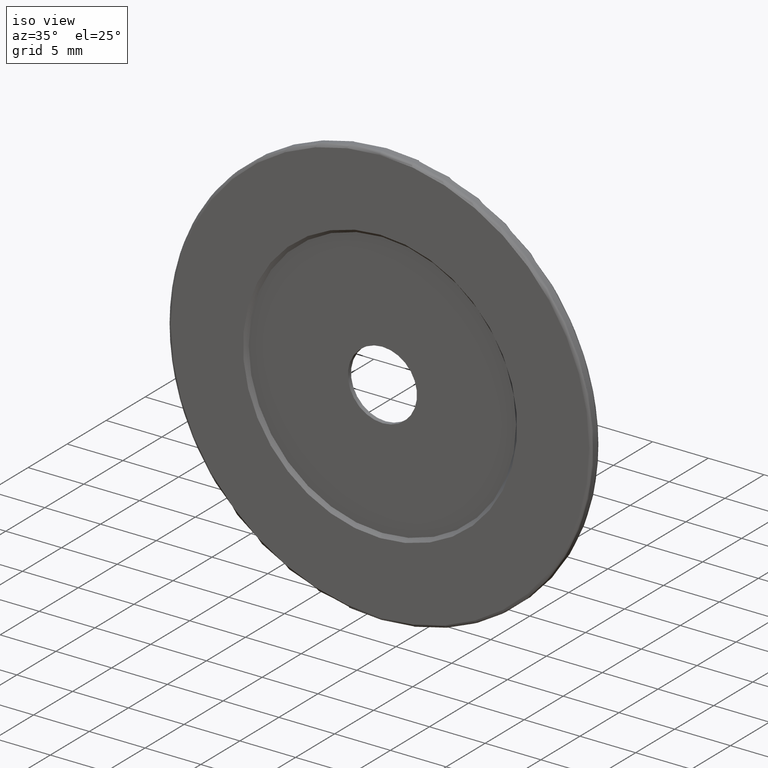
[diagram: clean part render]
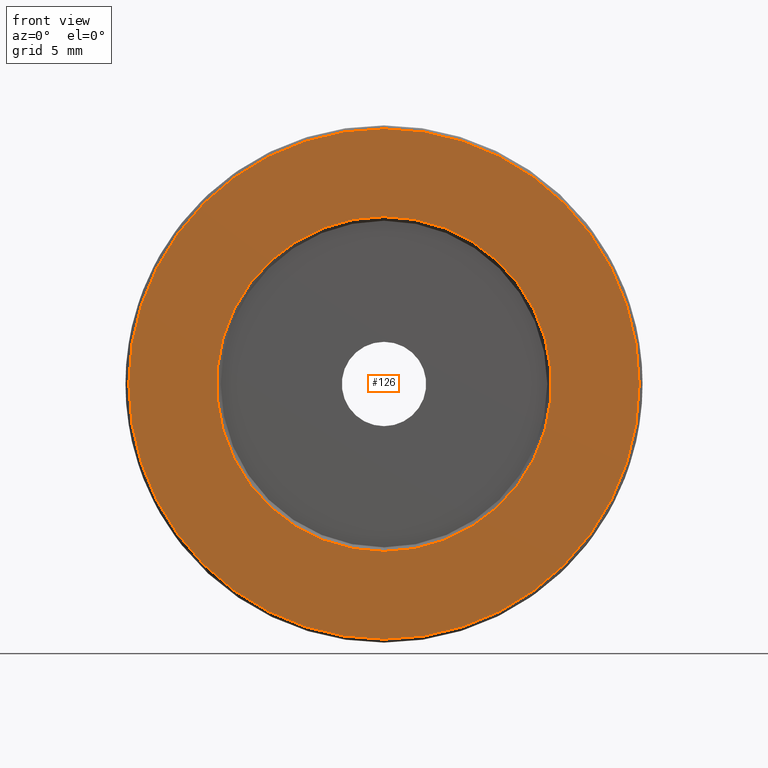
[diagram: tour spotlight — one face highlighted and labeled with its STEP entity id]
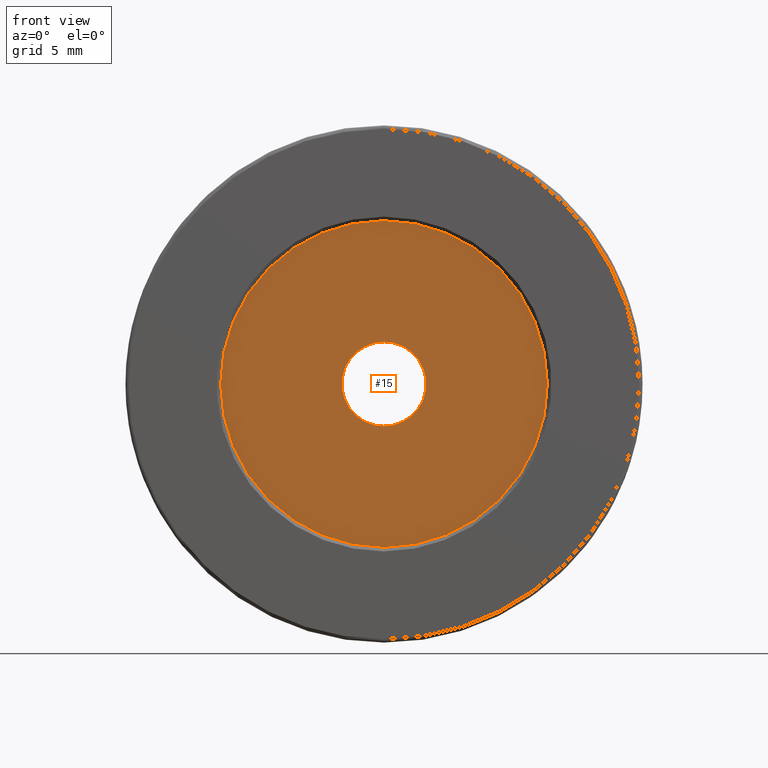
[diagram: tour spotlight — one face highlighted and labeled with its STEP entity id]
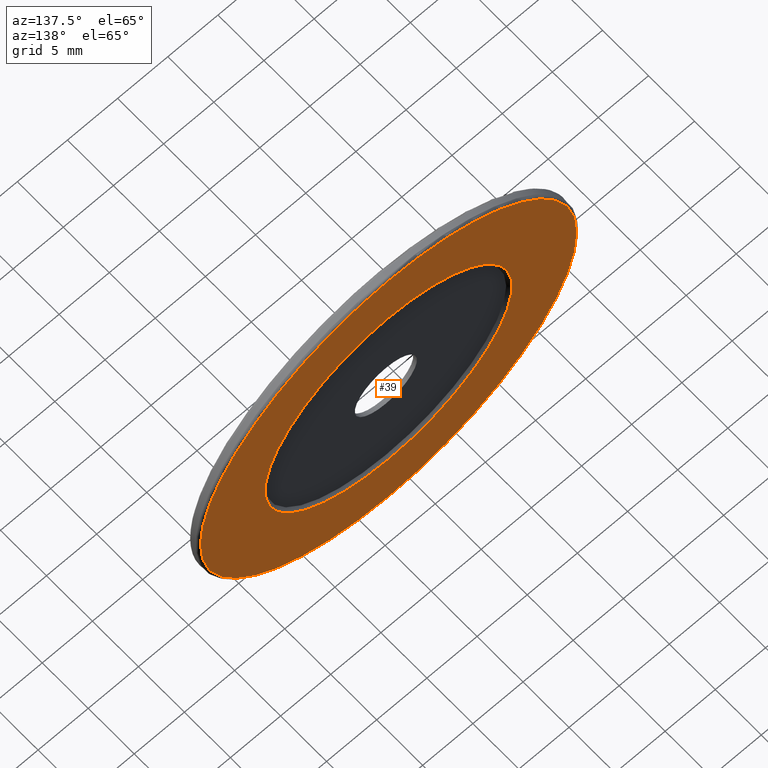
[diagram: tour spotlight — one face highlighted and labeled with its STEP entity id]
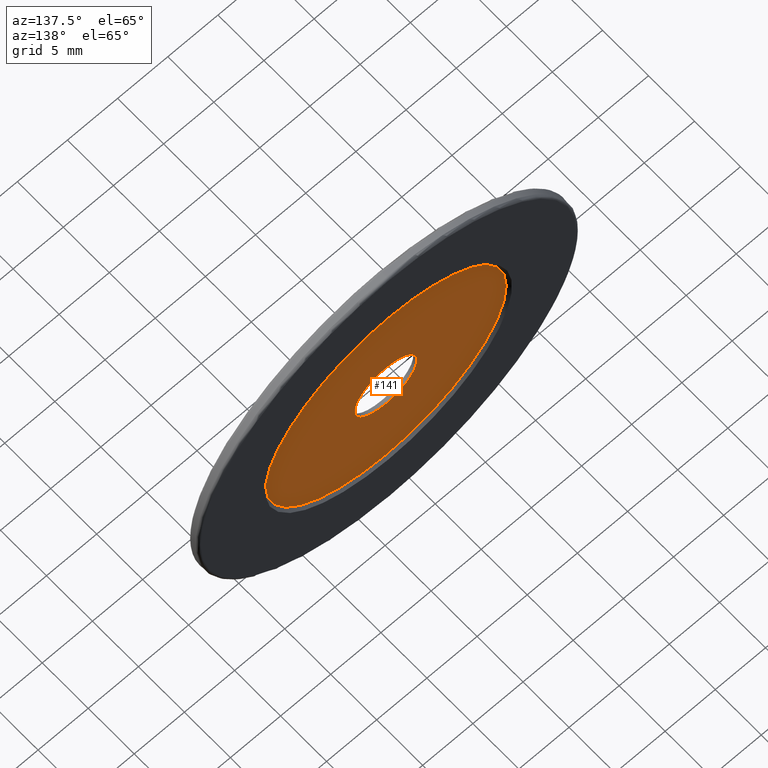
[diagram: tour spotlight — one face highlighted and labeled with its STEP entity id]
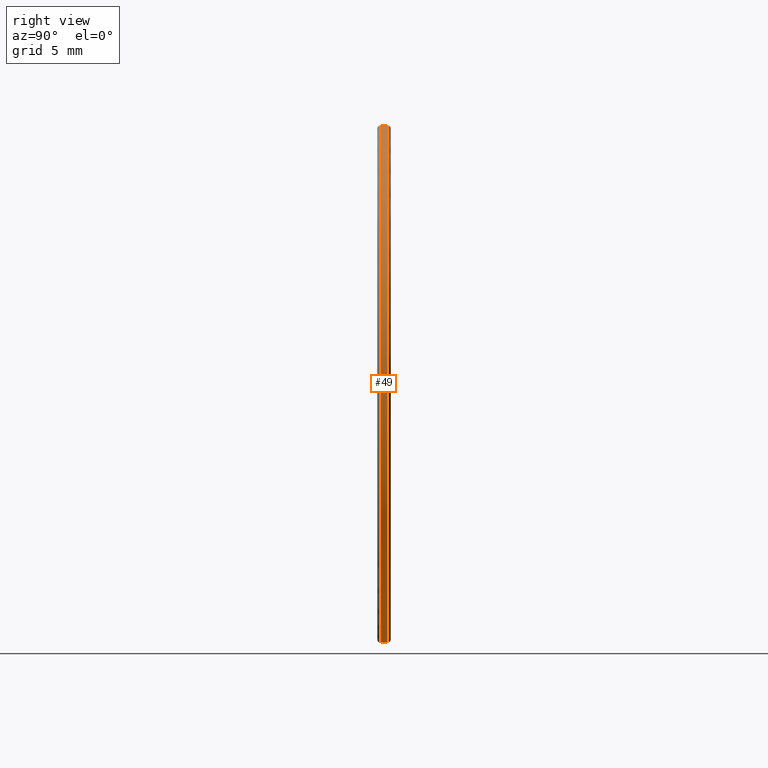
[diagram: tour spotlight — one face highlighted and labeled with its STEP entity id]
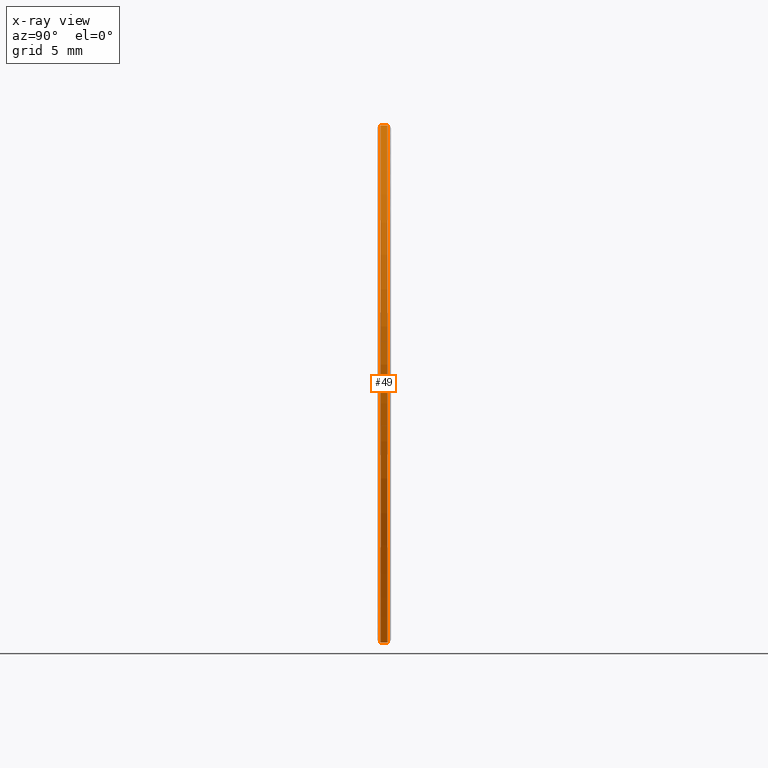
[diagram: x-ray of the same camera — body ghosted, this tour face saturated]
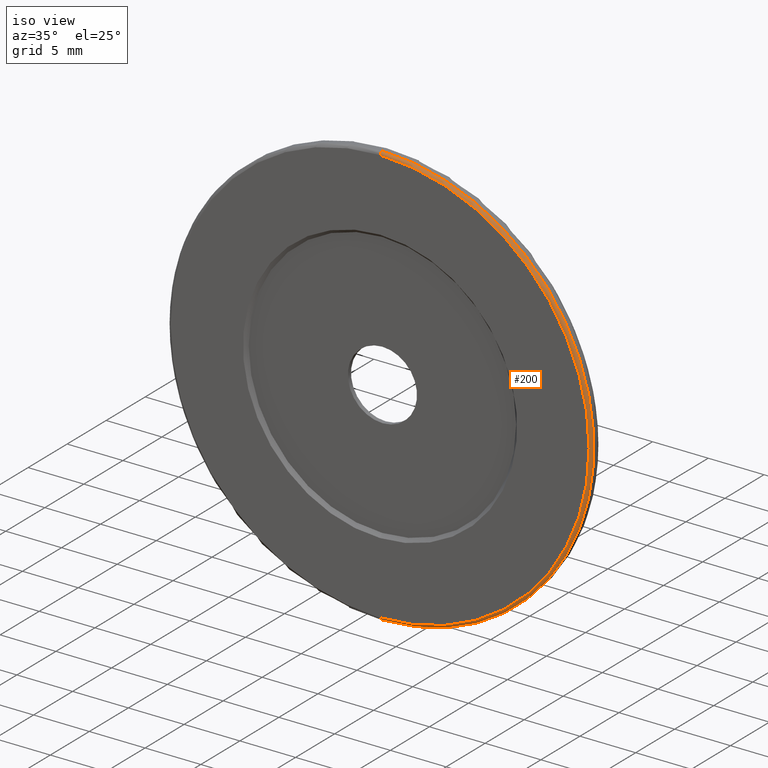
[diagram: tour spotlight — one face highlighted and labeled with its STEP entity id]
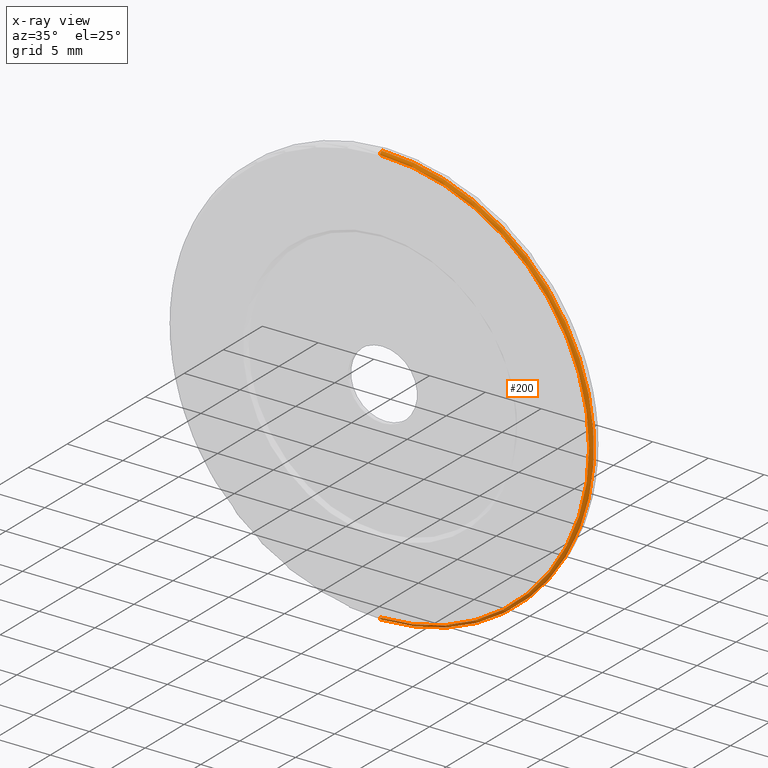
[diagram: x-ray of the same camera — body ghosted, this tour face saturated]
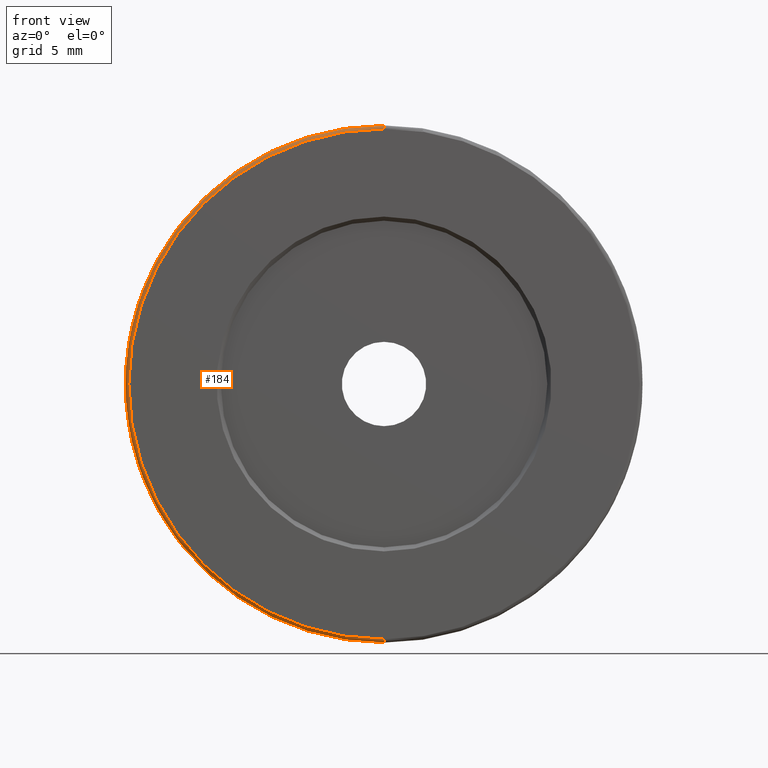
[diagram: tour spotlight — one face highlighted and labeled with its STEP entity id]
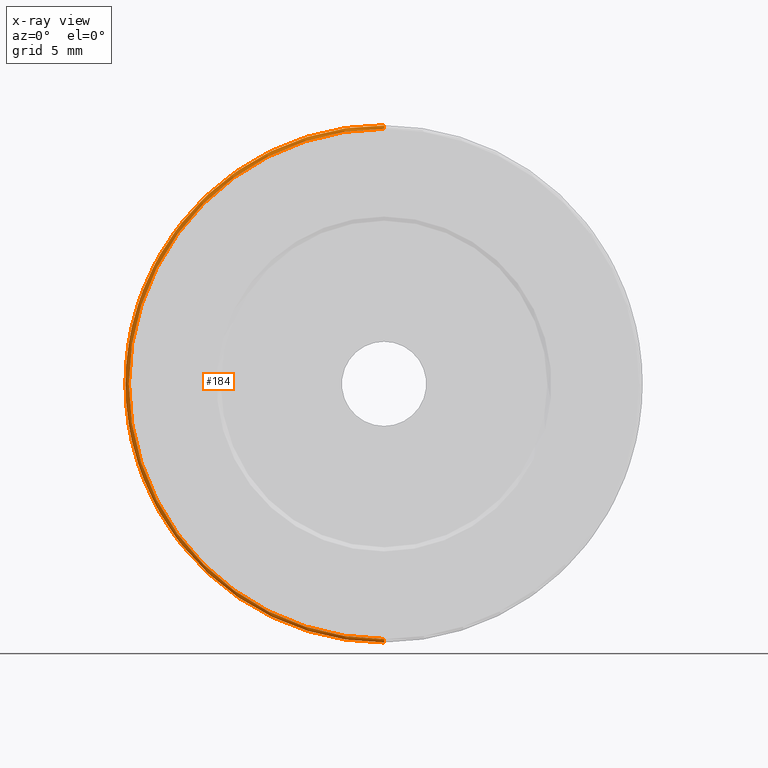
[diagram: x-ray of the same camera — body ghosted, this tour face saturated]
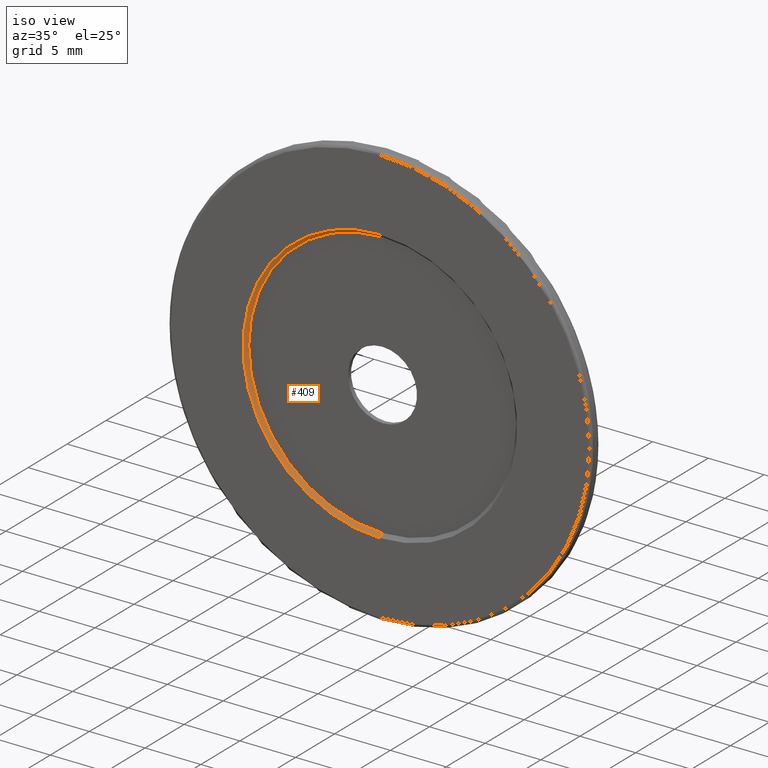
[diagram: tour spotlight — one face highlighted and labeled with its STEP entity id]
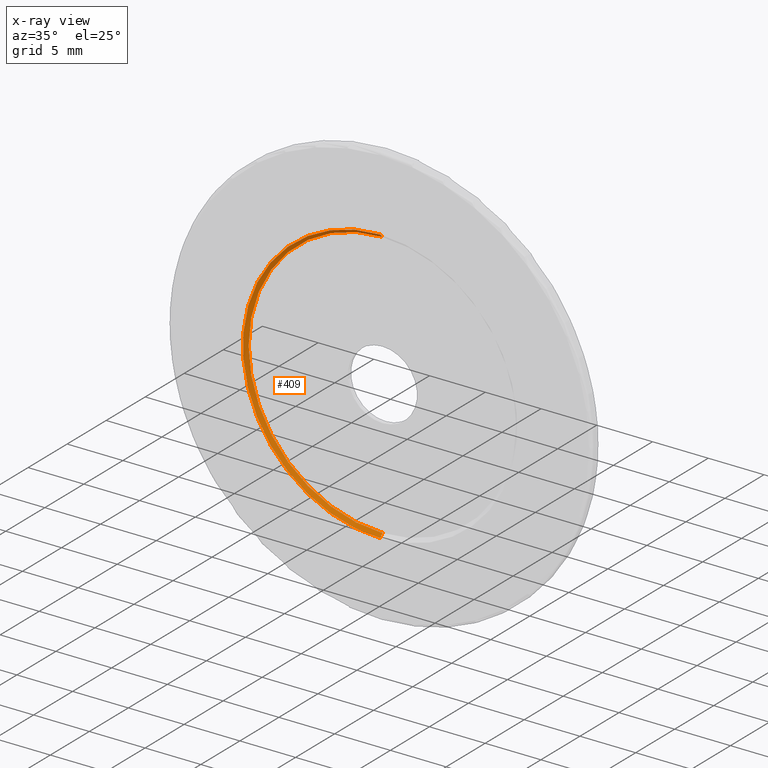
[diagram: x-ray of the same camera — body ghosted, this tour face saturated]
A machine part: a face-by-face anatomy tour. The part has 16 B-rep faces; the first image is the clean iso view, then the 8 largest visible faces are spotlighted one at a time (largest first), each with its STEP entity span.

Face 1 — front view, entity #126. In plain terms, the highlighted planar face has unit normal (0, 1, 0).
Definition (entity closure, byte-faithful):
#6 = DIRECTION ( 'NONE',  ( 0.000000000000000000, 0.000000000000000000, 1.000000000000000000 ) ) ;
#9 = FACE_BOUND ( 'NONE', #230, .T. ) ;
#14 = DIRECTION ( 'NONE',  ( 0.000000000000000000, 1.000000000000000000, 0.000000000000000000 ) ) ;
#26 = EDGE_CURVE ( 'NONE', #472, #430, #405, .T. ) ;
#31 = DIRECTION ( 'NONE',  ( 0.000000000000000000, 0.000000000000000000, 1.000000000000000000 ) ) ;
#37 = CARTESIAN_POINT ( 'NONE',  ( -7.546808913101048510, -3.393595127302727832, 38.00000000000000000 ) ) ;
#38 = ORIENTED_EDGE ( 'NONE', *, *, #26, .T. ) ;
#53 = EDGE_CURVE ( 'NONE', #74, #420, #452, .T. ) ;
#74 = VERTEX_POINT ( 'NONE', #127 ) ;
#79 = DIRECTION ( 'NONE',  ( 0.000000000000000000, 0.000000000000000000, 1.000000000000000000 ) ) ;
#82 = EDGE_LOOP ( 'NONE', ( #264, #38 ) ) ;
#88 = CARTESIAN_POINT ( 'NONE',  ( -7.546808913101048510, -3.393595127302727832, 38.00000000000000000 ) ) ;
#126 = ADVANCED_FACE ( 'NONE', ( #364, #9 ), #168, .F. ) ;
#127 = CARTESIAN_POINT ( 'NONE',  ( -7.546808913101046734, -3.393595127302727832, 50.29999999999999716 ) ) ;
#132 = CARTESIAN_POINT ( 'NONE',  ( -7.546808913101048510, -3.393595127302727832, 38.00000000000000000 ) ) ;
#168 = PLANE ( 'NONE',  #233 ) ;
#180 = AXIS2_PLACEMENT_3D ( 'NONE', #450, #325, #487 ) ;
#190 = CARTESIAN_POINT ( 'NONE',  ( -7.546808913101045846, -3.393595127302727832, 19.25000000000000000 ) ) ;
#205 = CIRCLE ( 'NONE', #489, 18.74999999999999645 ) ;
#221 = DIRECTION ( 'NONE',  ( 0.000000000000000000, 1.000000000000000000, 0.000000000000000000 ) ) ;
#230 = EDGE_LOOP ( 'NONE', ( #258, #292 ) ) ;
#233 = AXIS2_PLACEMENT_3D ( 'NONE', #132, #485, #244 ) ;
#244 = DIRECTION ( 'NONE',  ( 0.000000000000000000, -0.000000000000000000, 1.000000000000000000 ) ) ;
#258 = ORIENTED_EDGE ( 'NONE', *, *, #313, .T. ) ;
#262 = DIRECTION ( 'NONE',  ( -0.000000000000000000, -1.000000000000000000, -0.000000000000000000 ) ) ;
#264 = ORIENTED_EDGE ( 'NONE', *, *, #453, .T. ) ;
#282 = AXIS2_PLACEMENT_3D ( 'NONE', #37, #221, #79 ) ;
#292 = ORIENTED_EDGE ( 'NONE', *, *, #53, .T. ) ;
#313 = EDGE_CURVE ( 'NONE', #420, #74, #414, .T. ) ;
#314 = CARTESIAN_POINT ( 'NONE',  ( -7.546808913101048510, -3.393595127302727832, 38.00000000000000000 ) ) ;
#325 = DIRECTION ( 'NONE',  ( -0.000000000000000000, -1.000000000000000000, -0.000000000000000000 ) ) ;
#364 = FACE_OUTER_BOUND ( 'NONE', #82, .T. ) ;
#391 = CARTESIAN_POINT ( 'NONE',  ( -7.546808913101048510, -3.393595127302727832, 25.69999999999999929 ) ) ;
#405 = CIRCLE ( 'NONE', #180, 18.74999999999999645 ) ;
#414 = CIRCLE ( 'NONE', #282, 12.29999999999999893 ) ;
#420 = VERTEX_POINT ( 'NONE', #391 ) ;
#430 = VERTEX_POINT ( 'NONE', #474 ) ;
#450 = CARTESIAN_POINT ( 'NONE',  ( -7.546808913101048510, -3.393595127302727832, 38.00000000000000000 ) ) ;
#452 = CIRCLE ( 'NONE', #470, 12.29999999999999893 ) ;
#453 = EDGE_CURVE ( 'NONE', #430, #472, #205, .T. ) ;
#470 = AXIS2_PLACEMENT_3D ( 'NONE', #88, #14, #6 ) ;
#472 = VERTEX_POINT ( 'NONE', #190 ) ;
#474 = CARTESIAN_POINT ( 'NONE',  ( -7.546808913101048510, -3.393595127302727832, 56.74999999999999289 ) ) ;
#485 = DIRECTION ( 'NONE',  ( 0.000000000000000000, 1.000000000000000000, 0.000000000000000000 ) ) ;
#487 = DIRECTION ( 'NONE',  ( 0.000000000000000000, 0.000000000000000000, 1.000000000000000000 ) ) ;
#489 = AXIS2_PLACEMENT_3D ( 'NONE', #314, #262, #31 ) ;

Face 2 — front view, entity #15. In plain terms, the highlighted planar face has unit normal (0, -1, 0).
Definition (entity closure, byte-faithful):
#5 = AXIS2_PLACEMENT_3D ( 'NONE', #384, #288, #250 ) ;
#15 = ADVANCED_FACE ( 'NONE', ( #404, #358 ), #411, .T. ) ;
#29 = DIRECTION ( 'NONE',  ( -0.000000000000000000, 1.000000000000000000, -0.000000000000000000 ) ) ;
#40 = CIRCLE ( 'NONE', #90, 3.099999999999998757 ) ;
#46 = DIRECTION ( 'NONE',  ( 0.000000000000000000, -1.000000000000000000, 0.000000000000000000 ) ) ;
#72 = ORIENTED_EDGE ( 'NONE', *, *, #179, .T. ) ;
#81 = DIRECTION ( 'NONE',  ( 0.000000000000000000, 0.000000000000000000, -1.000000000000000000 ) ) ;
#89 = CARTESIAN_POINT ( 'NONE',  ( -7.546808913101048510, -3.093595127302728010, 25.99999999999999645 ) ) ;
#90 = AXIS2_PLACEMENT_3D ( 'NONE', #335, #99, #297 ) ;
#93 = CARTESIAN_POINT ( 'NONE',  ( -7.546808913101046734, -3.093595127302728010, 50.00000000000000000 ) ) ;
#97 = DIRECTION ( 'NONE',  ( -0.000000000000000000, 1.000000000000000000, -0.000000000000000000 ) ) ;
#99 = DIRECTION ( 'NONE',  ( -0.000000000000000000, 1.000000000000000000, -0.000000000000000000 ) ) ;
#112 = VERTEX_POINT ( 'NONE', #247 ) ;
#138 = AXIS2_PLACEMENT_3D ( 'NONE', #463, #97, #212 ) ;
#140 = VERTEX_POINT ( 'NONE', #93 ) ;
#154 = CARTESIAN_POINT ( 'NONE',  ( -7.546808913101048510, -3.093595127302728010, 38.00000000000000000 ) ) ;
#179 = EDGE_CURVE ( 'NONE', #210, #112, #40, .T. ) ;
#186 = EDGE_CURVE ( 'NONE', #140, #503, #224, .T. ) ;
#201 = ORIENTED_EDGE ( 'NONE', *, *, #248, .F. ) ;
#202 = DIRECTION ( 'NONE',  ( 0.000000000000000000, 0.000000000000000000, 1.000000000000000000 ) ) ;
#210 = VERTEX_POINT ( 'NONE', #451 ) ;
#212 = DIRECTION ( 'NONE',  ( 0.000000000000000000, 0.000000000000000000, 1.000000000000000000 ) ) ;
#224 = CIRCLE ( 'NONE', #5, 12.00000000000000355 ) ;
#238 = CARTESIAN_POINT ( 'NONE',  ( -7.546808913101048510, -3.093595127302728010, 38.00000000000000000 ) ) ;
#247 = CARTESIAN_POINT ( 'NONE',  ( -7.546808913101048510, -3.093595127302728010, 34.89999999999999858 ) ) ;
#248 = EDGE_CURVE ( 'NONE', #503, #140, #296, .T. ) ;
#250 = DIRECTION ( 'NONE',  ( 0.000000000000000000, 0.000000000000000000, 1.000000000000000000 ) ) ;
#288 = DIRECTION ( 'NONE',  ( -0.000000000000000000, 1.000000000000000000, -0.000000000000000000 ) ) ;
#291 = AXIS2_PLACEMENT_3D ( 'NONE', #154, #29, #81 ) ;
#295 = EDGE_LOOP ( 'NONE', ( #72, #315 ) ) ;
#296 = CIRCLE ( 'NONE', #138, 12.00000000000000355 ) ;
#297 = DIRECTION ( 'NONE',  ( 0.000000000000000000, 0.000000000000000000, -1.000000000000000000 ) ) ;
#304 = ORIENTED_EDGE ( 'NONE', *, *, #186, .F. ) ;
#307 = AXIS2_PLACEMENT_3D ( 'NONE', #238, #46, #202 ) ;
#315 = ORIENTED_EDGE ( 'NONE', *, *, #361, .T. ) ;
#327 = CIRCLE ( 'NONE', #291, 3.099999999999998757 ) ;
#335 = CARTESIAN_POINT ( 'NONE',  ( -7.546808913101048510, -3.093595127302728010, 38.00000000000000000 ) ) ;
#358 = FACE_BOUND ( 'NONE', #295, .T. ) ;
#361 = EDGE_CURVE ( 'NONE', #112, #210, #327, .T. ) ;
#384 = CARTESIAN_POINT ( 'NONE',  ( -7.546808913101048510, -3.093595127302728010, 38.00000000000000000 ) ) ;
#404 = FACE_OUTER_BOUND ( 'NONE', #436, .T. ) ;
#411 = PLANE ( 'NONE',  #307 ) ;
#436 = EDGE_LOOP ( 'NONE', ( #201, #304 ) ) ;
#451 = CARTESIAN_POINT ( 'NONE',  ( -7.546808913101048510, -3.093595127302728010, 41.09999999999999432 ) ) ;
#463 = CARTESIAN_POINT ( 'NONE',  ( -7.546808913101048510, -3.093595127302728010, 38.00000000000000000 ) ) ;
#503 = VERTEX_POINT ( 'NONE', #89 ) ;

Face 3 — auxiliary view, entity #39. In plain terms, the highlighted planar face has unit normal (0, 1, 0).
Definition (entity closure, byte-faithful):
#10 = DIRECTION ( 'NONE',  ( 0.000000000000000000, 0.000000000000000000, 1.000000000000000000 ) ) ;
#39 = ADVANCED_FACE ( 'NONE', ( #330, #208 ), #413, .T. ) ;
#55 = CARTESIAN_POINT ( 'NONE',  ( -7.546808913101048510, -2.393595127302727832, 38.00000000000000000 ) ) ;
#62 = VERTEX_POINT ( 'NONE', #322 ) ;
#91 = DIRECTION ( 'NONE',  ( 0.000000000000000000, 1.000000000000000000, 0.000000000000000000 ) ) ;
#103 = CARTESIAN_POINT ( 'NONE',  ( -7.546808913101048510, -2.393595127302727832, 38.00000000000000000 ) ) ;
#115 = DIRECTION ( 'NONE',  ( 0.000000000000000000, 0.000000000000000000, 1.000000000000000000 ) ) ;
#117 = VERTEX_POINT ( 'NONE', #240 ) ;
#129 = DIRECTION ( 'NONE',  ( 0.000000000000000000, -0.000000000000000000, 1.000000000000000000 ) ) ;
#134 = AXIS2_PLACEMENT_3D ( 'NONE', #403, #484, #486 ) ;
#139 = DIRECTION ( 'NONE',  ( 0.000000000000000000, 0.000000000000000000, 1.000000000000000000 ) ) ;
#147 = AXIS2_PLACEMENT_3D ( 'NONE', #55, #91, #129 ) ;
#153 = ORIENTED_EDGE ( 'NONE', *, *, #227, .T. ) ;
#157 = CARTESIAN_POINT ( 'NONE',  ( -7.546808913101045846, -2.393595127302727832, 19.25000000000000000 ) ) ;
#172 = AXIS2_PLACEMENT_3D ( 'NONE', #103, #492, #139 ) ;
#196 = CIRCLE ( 'NONE', #382, 12.30000000000000604 ) ;
#208 = FACE_BOUND ( 'NONE', #392, .T. ) ;
#214 = CARTESIAN_POINT ( 'NONE',  ( -7.546808913101046734, -2.393595127302727832, 25.69999999999999218 ) ) ;
#222 = ORIENTED_EDGE ( 'NONE', *, *, #303, .T. ) ;
#227 = EDGE_CURVE ( 'NONE', #117, #308, #396, .T. ) ;
#239 = CARTESIAN_POINT ( 'NONE',  ( -7.546808913101048510, -2.393595127302727832, 38.00000000000000000 ) ) ;
#240 = CARTESIAN_POINT ( 'NONE',  ( -7.546808913101048510, -2.393595127302727832, 56.74999999999999289 ) ) ;
#277 = VERTEX_POINT ( 'NONE', #214 ) ;
#303 = EDGE_CURVE ( 'NONE', #277, #62, #196, .T. ) ;
#308 = VERTEX_POINT ( 'NONE', #157 ) ;
#322 = CARTESIAN_POINT ( 'NONE',  ( -7.546808913101048510, -2.393595127302727832, 50.30000000000000426 ) ) ;
#330 = FACE_OUTER_BOUND ( 'NONE', #400, .T. ) ;
#342 = DIRECTION ( 'NONE',  ( -0.000000000000000000, -1.000000000000000000, -0.000000000000000000 ) ) ;
#354 = CIRCLE ( 'NONE', #398, 12.30000000000000604 ) ;
#382 = AXIS2_PLACEMENT_3D ( 'NONE', #386, #342, #115 ) ;
#386 = CARTESIAN_POINT ( 'NONE',  ( -7.546808913101048510, -2.393595127302727832, 38.00000000000000000 ) ) ;
#392 = EDGE_LOOP ( 'NONE', ( #394, #222 ) ) ;
#394 = ORIENTED_EDGE ( 'NONE', *, *, #480, .T. ) ;
#396 = CIRCLE ( 'NONE', #172, 18.74999999999999645 ) ;
#398 = AXIS2_PLACEMENT_3D ( 'NONE', #239, #482, #10 ) ;
#400 = EDGE_LOOP ( 'NONE', ( #153, #456 ) ) ;
#403 = CARTESIAN_POINT ( 'NONE',  ( -7.546808913101048510, -2.393595127302727832, 38.00000000000000000 ) ) ;
#413 = PLANE ( 'NONE',  #147 ) ;
#434 = CIRCLE ( 'NONE', #134, 18.74999999999999645 ) ;
#456 = ORIENTED_EDGE ( 'NONE', *, *, #506, .T. ) ;
#480 = EDGE_CURVE ( 'NONE', #62, #277, #354, .T. ) ;
#482 = DIRECTION ( 'NONE',  ( -0.000000000000000000, -1.000000000000000000, -0.000000000000000000 ) ) ;
#484 = DIRECTION ( 'NONE',  ( 0.000000000000000000, 1.000000000000000000, 0.000000000000000000 ) ) ;
#486 = DIRECTION ( 'NONE',  ( 0.000000000000000000, 0.000000000000000000, 1.000000000000000000 ) ) ;
#492 = DIRECTION ( 'NONE',  ( 0.000000000000000000, 1.000000000000000000, 0.000000000000000000 ) ) ;
#506 = EDGE_CURVE ( 'NONE', #308, #117, #434, .T. ) ;

Face 4 — auxiliary view, entity #141. In plain terms, the highlighted planar face has unit normal (0, 1, 0).
Definition (entity closure, byte-faithful):
#2 = DIRECTION ( 'NONE',  ( 0.000000000000000000, 0.000000000000000000, 1.000000000000000000 ) ) ;
#11 = ORIENTED_EDGE ( 'NONE', *, *, #379, .T. ) ;
#22 = CIRCLE ( 'NONE', #47, 12.00000000000000355 ) ;
#47 = AXIS2_PLACEMENT_3D ( 'NONE', #52, #284, #449 ) ;
#52 = CARTESIAN_POINT ( 'NONE',  ( -7.546808913101048510, -2.693595127302727654, 38.00000000000000000 ) ) ;
#64 = FACE_OUTER_BOUND ( 'NONE', #346, .T. ) ;
#84 = AXIS2_PLACEMENT_3D ( 'NONE', #502, #109, #393 ) ;
#85 = ORIENTED_EDGE ( 'NONE', *, *, #385, .F. ) ;
#94 = EDGE_CURVE ( 'NONE', #440, #178, #462, .T. ) ;
#104 = AXIS2_PLACEMENT_3D ( 'NONE', #142, #107, #332 ) ;
#107 = DIRECTION ( 'NONE',  ( 0.000000000000000000, 1.000000000000000000, 0.000000000000000000 ) ) ;
#109 = DIRECTION ( 'NONE',  ( 0.000000000000000000, 1.000000000000000000, 0.000000000000000000 ) ) ;
#119 = VERTEX_POINT ( 'NONE', #442 ) ;
#123 = CIRCLE ( 'NONE', #84, 3.099999999999998757 ) ;
#131 = EDGE_CURVE ( 'NONE', #155, #119, #22, .T. ) ;
#133 = AXIS2_PLACEMENT_3D ( 'NONE', #504, #223, #467 ) ;
#141 = ADVANCED_FACE ( 'NONE', ( #181, #64 ), #144, .T. ) ;
#142 = CARTESIAN_POINT ( 'NONE',  ( -7.546808913101048510, -2.693595127302727654, 38.00000000000000000 ) ) ;
#144 = PLANE ( 'NONE',  #104 ) ;
#146 = ORIENTED_EDGE ( 'NONE', *, *, #94, .F. ) ;
#155 = VERTEX_POINT ( 'NONE', #293 ) ;
#178 = VERTEX_POINT ( 'NONE', #185 ) ;
#181 = FACE_BOUND ( 'NONE', #334, .T. ) ;
#185 = CARTESIAN_POINT ( 'NONE',  ( -7.546808913101048510, -2.693595127302727654, 41.09999999999999432 ) ) ;
#223 = DIRECTION ( 'NONE',  ( 0.000000000000000000, 1.000000000000000000, 0.000000000000000000 ) ) ;
#241 = AXIS2_PLACEMENT_3D ( 'NONE', #479, #447, #2 ) ;
#255 = CIRCLE ( 'NONE', #133, 12.00000000000000355 ) ;
#284 = DIRECTION ( 'NONE',  ( 0.000000000000000000, 1.000000000000000000, 0.000000000000000000 ) ) ;
#293 = CARTESIAN_POINT ( 'NONE',  ( -7.546808913101046734, -2.693595127302727654, 25.99999999999999645 ) ) ;
#302 = CARTESIAN_POINT ( 'NONE',  ( -7.546808913101048510, -2.693595127302727654, 34.89999999999999858 ) ) ;
#332 = DIRECTION ( 'NONE',  ( 0.000000000000000000, -0.000000000000000000, 1.000000000000000000 ) ) ;
#334 = EDGE_LOOP ( 'NONE', ( #85, #146 ) ) ;
#344 = ORIENTED_EDGE ( 'NONE', *, *, #131, .T. ) ;
#346 = EDGE_LOOP ( 'NONE', ( #11, #344 ) ) ;
#379 = EDGE_CURVE ( 'NONE', #119, #155, #255, .T. ) ;
#385 = EDGE_CURVE ( 'NONE', #178, #440, #123, .T. ) ;
#393 = DIRECTION ( 'NONE',  ( 0.000000000000000000, 0.000000000000000000, 1.000000000000000000 ) ) ;
#440 = VERTEX_POINT ( 'NONE', #302 ) ;
#442 = CARTESIAN_POINT ( 'NONE',  ( -7.546808913101048510, -2.693595127302727654, 50.00000000000000000 ) ) ;
#447 = DIRECTION ( 'NONE',  ( 0.000000000000000000, 1.000000000000000000, 0.000000000000000000 ) ) ;
#449 = DIRECTION ( 'NONE',  ( 0.000000000000000000, 0.000000000000000000, 1.000000000000000000 ) ) ;
#462 = CIRCLE ( 'NONE', #241, 3.099999999999998757 ) ;
#467 = DIRECTION ( 'NONE',  ( 0.000000000000000000, 0.000000000000000000, 1.000000000000000000 ) ) ;
#479 = CARTESIAN_POINT ( 'NONE',  ( -7.546808913101048510, -2.693595127302727654, 38.00000000000000000 ) ) ;
#502 = CARTESIAN_POINT ( 'NONE',  ( -7.546808913101048510, -2.693595127302727654, 38.00000000000000000 ) ) ;
#504 = CARTESIAN_POINT ( 'NONE',  ( -7.546808913101048510, -2.693595127302727654, 38.00000000000000000 ) ) ;

Face 5 — right view, entity #49. An x-ray twin of the same camera follows (body ghosted, this face saturated) — the face is partly hidden behind the body. In plain terms, the highlighted cylindrical surface (partial cylindrical patch) has radius 19 mm, axis along (-0, -1, -0).
Definition (entity closure, byte-faithful):
#16 = CARTESIAN_POINT ( 'NONE',  ( -7.546808913101044958, -3.143595127302728276, 19.00000000000000000 ) ) ;
#35 = DIRECTION ( 'NONE',  ( -0.000000000000000000, -1.000000000000000000, -0.000000000000000000 ) ) ;
#44 = VERTEX_POINT ( 'NONE', #286 ) ;
#49 = ADVANCED_FACE ( 'NONE', ( #483 ), #370, .T. ) ;
#58 = DIRECTION ( 'NONE',  ( -0.000000000000000000, -1.000000000000000000, -0.000000000000000000 ) ) ;
#66 = CIRCLE ( 'NONE', #266, 18.99999999999999645 ) ;
#71 = CARTESIAN_POINT ( 'NONE',  ( -7.546808913101048510, -3.143595127302728276, 38.00000000000000000 ) ) ;
#73 = LINE ( 'NONE', #188, #267 ) ;
#96 = DIRECTION ( 'NONE',  ( 0.000000000000000000, 0.000000000000000000, -1.000000000000000000 ) ) ;
#111 = CARTESIAN_POINT ( 'NONE',  ( -7.546808913101045846, -2.643595127302727832, 56.99999999999999289 ) ) ;
#114 = AXIS2_PLACEMENT_3D ( 'NONE', #71, #187, #231 ) ;
#121 = VERTEX_POINT ( 'NONE', #206 ) ;
#152 = DIRECTION ( 'NONE',  ( -0.000000000000000000, -1.000000000000000000, -0.000000000000000000 ) ) ;
#159 = DIRECTION ( 'NONE',  ( -0.000000000000000000, -1.000000000000000000, -0.000000000000000000 ) ) ;
#164 = AXIS2_PLACEMENT_3D ( 'NONE', #491, #58, #96 ) ;
#187 = DIRECTION ( 'NONE',  ( 0.000000000000000000, 1.000000000000000000, 0.000000000000000000 ) ) ;
#188 = CARTESIAN_POINT ( 'NONE',  ( -7.546808913101045846, -2.393595127302727832, 56.99999999999999289 ) ) ;
#206 = CARTESIAN_POINT ( 'NONE',  ( -7.546808913101048510, -2.643595127302727832, 19.00000000000000000 ) ) ;
#231 = DIRECTION ( 'NONE',  ( 0.000000000000000000, 0.000000000000000000, 1.000000000000000000 ) ) ;
#256 = VERTEX_POINT ( 'NONE', #16 ) ;
#266 = AXIS2_PLACEMENT_3D ( 'NONE', #348, #35, #437 ) ;
#267 = VECTOR ( 'NONE', #152, 1000.000000000000000 ) ;
#274 = EDGE_LOOP ( 'NONE', ( #445, #475, #375, #508 ) ) ;
#286 = CARTESIAN_POINT ( 'NONE',  ( -7.546808913101048510, -3.143595127302728276, 56.99999999999999289 ) ) ;
#287 = EDGE_CURVE ( 'NONE', #121, #256, #377, .T. ) ;
#298 = CIRCLE ( 'NONE', #114, 18.99999999999999645 ) ;
#329 = EDGE_CURVE ( 'NONE', #121, #417, #66, .T. ) ;
#348 = CARTESIAN_POINT ( 'NONE',  ( -7.546808913101048510, -2.643595127302727832, 38.00000000000000000 ) ) ;
#351 = CARTESIAN_POINT ( 'NONE',  ( -7.546808913101048510, -2.393595127302727832, 19.00000000000000000 ) ) ;
#368 = EDGE_CURVE ( 'NONE', #44, #256, #298, .T. ) ;
#370 = CYLINDRICAL_SURFACE ( 'NONE', #164, 19.00000000000000000 ) ;
#375 = ORIENTED_EDGE ( 'NONE', *, *, #368, .T. ) ;
#377 = LINE ( 'NONE', #351, #454 ) ;
#417 = VERTEX_POINT ( 'NONE', #111 ) ;
#437 = DIRECTION ( 'NONE',  ( 0.000000000000000000, 0.000000000000000000, 1.000000000000000000 ) ) ;
#445 = ORIENTED_EDGE ( 'NONE', *, *, #329, .T. ) ;
#454 = VECTOR ( 'NONE', #159, 1000.000000000000000 ) ;
#469 = EDGE_CURVE ( 'NONE', #417, #44, #73, .T. ) ;
#475 = ORIENTED_EDGE ( 'NONE', *, *, #469, .T. ) ;
#483 = FACE_OUTER_BOUND ( 'NONE', #274, .T. ) ;
#491 = CARTESIAN_POINT ( 'NONE',  ( -7.546808913101048510, -2.393595127302727832, 38.00000000000000000 ) ) ;
#508 = ORIENTED_EDGE ( 'NONE', *, *, #287, .F. ) ;

Face 6 — iso view, entity #200. An x-ray twin of the same camera follows (body ghosted, this face saturated) — the face is partly hidden behind the body. In plain terms, the highlighted toroidal blend (fillet) surface has major radius 18.75 mm and minor (blend) radius 0.25 mm.
Definition (entity closure, byte-faithful):
#7 = AXIS2_PLACEMENT_3D ( 'NONE', #192, #509, #507 ) ;
#16 = CARTESIAN_POINT ( 'NONE',  ( -7.546808913101044958, -3.143595127302728276, 19.00000000000000000 ) ) ;
#26 = EDGE_CURVE ( 'NONE', #472, #430, #405, .T. ) ;
#33 = EDGE_CURVE ( 'NONE', #472, #256, #203, .T. ) ;
#44 = VERTEX_POINT ( 'NONE', #286 ) ;
#71 = CARTESIAN_POINT ( 'NONE',  ( -7.546808913101048510, -3.143595127302728276, 38.00000000000000000 ) ) ;
#102 = DIRECTION ( 'NONE',  ( 0.000000000000000000, 0.000000000000000000, 1.000000000000000000 ) ) ;
#114 = AXIS2_PLACEMENT_3D ( 'NONE', #71, #187, #231 ) ;
#156 = TOROIDAL_SURFACE ( 'NONE', #217, 18.75000000000000000, 0.2500000000000000000 ) ;
#177 = FACE_OUTER_BOUND ( 'NONE', #191, .T. ) ;
#180 = AXIS2_PLACEMENT_3D ( 'NONE', #450, #325, #487 ) ;
#187 = DIRECTION ( 'NONE',  ( 0.000000000000000000, 1.000000000000000000, 0.000000000000000000 ) ) ;
#190 = CARTESIAN_POINT ( 'NONE',  ( -7.546808913101045846, -3.393595127302727832, 19.25000000000000000 ) ) ;
#191 = EDGE_LOOP ( 'NONE', ( #194, #260, #341, #245 ) ) ;
#192 = CARTESIAN_POINT ( 'NONE',  ( -7.546808913101048510, -3.143595127302728276, 56.74999999999999289 ) ) ;
#194 = ORIENTED_EDGE ( 'NONE', *, *, #26, .F. ) ;
#200 = ADVANCED_FACE ( 'NONE', ( #177 ), #156, .T. ) ;
#203 = CIRCLE ( 'NONE', #326, 0.2500000000000002220 ) ;
#217 = AXIS2_PLACEMENT_3D ( 'NONE', #500, #496, #102 ) ;
#231 = DIRECTION ( 'NONE',  ( 0.000000000000000000, 0.000000000000000000, 1.000000000000000000 ) ) ;
#245 = ORIENTED_EDGE ( 'NONE', *, *, #343, .F. ) ;
#256 = VERTEX_POINT ( 'NONE', #16 ) ;
#260 = ORIENTED_EDGE ( 'NONE', *, *, #33, .T. ) ;
#275 = CIRCLE ( 'NONE', #7, 0.2500000000000002220 ) ;
#286 = CARTESIAN_POINT ( 'NONE',  ( -7.546808913101048510, -3.143595127302728276, 56.99999999999999289 ) ) ;
#298 = CIRCLE ( 'NONE', #114, 18.99999999999999645 ) ;
#318 = CARTESIAN_POINT ( 'NONE',  ( -7.546808913101045846, -3.143595127302728276, 19.25000000000000000 ) ) ;
#325 = DIRECTION ( 'NONE',  ( -0.000000000000000000, -1.000000000000000000, -0.000000000000000000 ) ) ;
#326 = AXIS2_PLACEMENT_3D ( 'NONE', #318, #360, #367 ) ;
#341 = ORIENTED_EDGE ( 'NONE', *, *, #368, .F. ) ;
#343 = EDGE_CURVE ( 'NONE', #430, #44, #275, .T. ) ;
#360 = DIRECTION ( 'NONE',  ( 1.000000000000000000, -0.000000000000000000, 1.224646799147353207E-16 ) ) ;
#367 = DIRECTION ( 'NONE',  ( 0.000000000000000000, 0.000000000000000000, -1.000000000000000000 ) ) ;
#368 = EDGE_CURVE ( 'NONE', #44, #256, #298, .T. ) ;
#405 = CIRCLE ( 'NONE', #180, 18.74999999999999645 ) ;
#430 = VERTEX_POINT ( 'NONE', #474 ) ;
#450 = CARTESIAN_POINT ( 'NONE',  ( -7.546808913101048510, -3.393595127302727832, 38.00000000000000000 ) ) ;
#472 = VERTEX_POINT ( 'NONE', #190 ) ;
#474 = CARTESIAN_POINT ( 'NONE',  ( -7.546808913101048510, -3.393595127302727832, 56.74999999999999289 ) ) ;
#487 = DIRECTION ( 'NONE',  ( 0.000000000000000000, 0.000000000000000000, 1.000000000000000000 ) ) ;
#496 = DIRECTION ( 'NONE',  ( 0.000000000000000000, 1.000000000000000000, 0.000000000000000000 ) ) ;
#500 = CARTESIAN_POINT ( 'NONE',  ( -7.546808913101048510, -3.143595127302728276, 38.00000000000000000 ) ) ;
#507 = DIRECTION ( 'NONE',  ( 0.000000000000000000, 0.000000000000000000, 1.000000000000000000 ) ) ;
#509 = DIRECTION ( 'NONE',  ( -1.000000000000000000, 0.000000000000000000, 0.000000000000000000 ) ) ;

Face 7 — front view, entity #184. An x-ray twin of the same camera follows (body ghosted, this face saturated) — the face is partly hidden behind the body. In plain terms, the highlighted toroidal blend (fillet) surface has major radius 18.75 mm and minor (blend) radius 0.25 mm.
Definition (entity closure, byte-faithful):
#7 = AXIS2_PLACEMENT_3D ( 'NONE', #192, #509, #507 ) ;
#16 = CARTESIAN_POINT ( 'NONE',  ( -7.546808913101044958, -3.143595127302728276, 19.00000000000000000 ) ) ;
#19 = ORIENTED_EDGE ( 'NONE', *, *, #33, .F. ) ;
#28 = DIRECTION ( 'NONE',  ( 0.000000000000000000, 0.000000000000000000, 1.000000000000000000 ) ) ;
#31 = DIRECTION ( 'NONE',  ( 0.000000000000000000, 0.000000000000000000, 1.000000000000000000 ) ) ;
#33 = EDGE_CURVE ( 'NONE', #472, #256, #203, .T. ) ;
#42 = AXIS2_PLACEMENT_3D ( 'NONE', #197, #273, #511 ) ;
#43 = ORIENTED_EDGE ( 'NONE', *, *, #453, .F. ) ;
#44 = VERTEX_POINT ( 'NONE', #286 ) ;
#65 = AXIS2_PLACEMENT_3D ( 'NONE', #459, #457, #28 ) ;
#69 = FACE_OUTER_BOUND ( 'NONE', #158, .T. ) ;
#151 = ORIENTED_EDGE ( 'NONE', *, *, #343, .T. ) ;
#158 = EDGE_LOOP ( 'NONE', ( #19, #43, #151, #387 ) ) ;
#184 = ADVANCED_FACE ( 'NONE', ( #69 ), #380, .T. ) ;
#190 = CARTESIAN_POINT ( 'NONE',  ( -7.546808913101045846, -3.393595127302727832, 19.25000000000000000 ) ) ;
#192 = CARTESIAN_POINT ( 'NONE',  ( -7.546808913101048510, -3.143595127302728276, 56.74999999999999289 ) ) ;
#197 = CARTESIAN_POINT ( 'NONE',  ( -7.546808913101048510, -3.143595127302728276, 38.00000000000000000 ) ) ;
#203 = CIRCLE ( 'NONE', #326, 0.2500000000000002220 ) ;
#205 = CIRCLE ( 'NONE', #489, 18.74999999999999645 ) ;
#243 = CIRCLE ( 'NONE', #42, 18.99999999999999645 ) ;
#256 = VERTEX_POINT ( 'NONE', #16 ) ;
#262 = DIRECTION ( 'NONE',  ( -0.000000000000000000, -1.000000000000000000, -0.000000000000000000 ) ) ;
#273 = DIRECTION ( 'NONE',  ( 0.000000000000000000, 1.000000000000000000, 0.000000000000000000 ) ) ;
#275 = CIRCLE ( 'NONE', #7, 0.2500000000000002220 ) ;
#286 = CARTESIAN_POINT ( 'NONE',  ( -7.546808913101048510, -3.143595127302728276, 56.99999999999999289 ) ) ;
#311 = EDGE_CURVE ( 'NONE', #256, #44, #243, .T. ) ;
#314 = CARTESIAN_POINT ( 'NONE',  ( -7.546808913101048510, -3.393595127302727832, 38.00000000000000000 ) ) ;
#318 = CARTESIAN_POINT ( 'NONE',  ( -7.546808913101045846, -3.143595127302728276, 19.25000000000000000 ) ) ;
#326 = AXIS2_PLACEMENT_3D ( 'NONE', #318, #360, #367 ) ;
#343 = EDGE_CURVE ( 'NONE', #430, #44, #275, .T. ) ;
#360 = DIRECTION ( 'NONE',  ( 1.000000000000000000, -0.000000000000000000, 1.224646799147353207E-16 ) ) ;
#367 = DIRECTION ( 'NONE',  ( 0.000000000000000000, 0.000000000000000000, -1.000000000000000000 ) ) ;
#380 = TOROIDAL_SURFACE ( 'NONE', #65, 18.75000000000000000, 0.2500000000000000000 ) ;
#387 = ORIENTED_EDGE ( 'NONE', *, *, #311, .F. ) ;
#430 = VERTEX_POINT ( 'NONE', #474 ) ;
#453 = EDGE_CURVE ( 'NONE', #430, #472, #205, .T. ) ;
#457 = DIRECTION ( 'NONE',  ( 0.000000000000000000, 1.000000000000000000, 0.000000000000000000 ) ) ;
#459 = CARTESIAN_POINT ( 'NONE',  ( -7.546808913101048510, -3.143595127302728276, 38.00000000000000000 ) ) ;
#472 = VERTEX_POINT ( 'NONE', #190 ) ;
#474 = CARTESIAN_POINT ( 'NONE',  ( -7.546808913101048510, -3.393595127302727832, 56.74999999999999289 ) ) ;
#489 = AXIS2_PLACEMENT_3D ( 'NONE', #314, #262, #31 ) ;
#507 = DIRECTION ( 'NONE',  ( 0.000000000000000000, 0.000000000000000000, 1.000000000000000000 ) ) ;
#509 = DIRECTION ( 'NONE',  ( -1.000000000000000000, 0.000000000000000000, 0.000000000000000000 ) ) ;
#511 = DIRECTION ( 'NONE',  ( 0.000000000000000000, 0.000000000000000000, 1.000000000000000000 ) ) ;

Face 8 — iso view, entity #409. An x-ray twin of the same camera follows (body ghosted, this face saturated) — the face is partly hidden behind the body. In plain terms, the highlighted conical surface has half-angle 45 deg.
Definition (entity closure, byte-faithful):
#37 = CARTESIAN_POINT ( 'NONE',  ( -7.546808913101048510, -3.393595127302727832, 38.00000000000000000 ) ) ;
#68 = VECTOR ( 'NONE', #429, 1000.000000000000000 ) ;
#74 = VERTEX_POINT ( 'NONE', #127 ) ;
#79 = DIRECTION ( 'NONE',  ( 0.000000000000000000, 0.000000000000000000, 1.000000000000000000 ) ) ;
#89 = CARTESIAN_POINT ( 'NONE',  ( -7.546808913101048510, -3.093595127302728010, 25.99999999999999645 ) ) ;
#93 = CARTESIAN_POINT ( 'NONE',  ( -7.546808913101046734, -3.093595127302728010, 50.00000000000000000 ) ) ;
#97 = DIRECTION ( 'NONE',  ( -0.000000000000000000, 1.000000000000000000, -0.000000000000000000 ) ) ;
#105 = AXIS2_PLACEMENT_3D ( 'NONE', #395, #300, #345 ) ;
#120 = LINE ( 'NONE', #355, #68 ) ;
#127 = CARTESIAN_POINT ( 'NONE',  ( -7.546808913101046734, -3.393595127302727832, 50.29999999999999716 ) ) ;
#135 = EDGE_LOOP ( 'NONE', ( #137, #477, #390, #225 ) ) ;
#137 = ORIENTED_EDGE ( 'NONE', *, *, #248, .T. ) ;
#138 = AXIS2_PLACEMENT_3D ( 'NONE', #463, #97, #212 ) ;
#140 = VERTEX_POINT ( 'NONE', #93 ) ;
#150 = FACE_OUTER_BOUND ( 'NONE', #135, .T. ) ;
#212 = DIRECTION ( 'NONE',  ( 0.000000000000000000, 0.000000000000000000, 1.000000000000000000 ) ) ;
#221 = DIRECTION ( 'NONE',  ( 0.000000000000000000, 1.000000000000000000, 0.000000000000000000 ) ) ;
#225 = ORIENTED_EDGE ( 'NONE', *, *, #418, .F. ) ;
#229 = DIRECTION ( 'NONE',  ( 0.000000000000000000, -0.7071067811865536790, -0.7071067811865414665 ) ) ;
#248 = EDGE_CURVE ( 'NONE', #503, #140, #296, .T. ) ;
#282 = AXIS2_PLACEMENT_3D ( 'NONE', #37, #221, #79 ) ;
#296 = CIRCLE ( 'NONE', #138, 12.00000000000000355 ) ;
#300 = DIRECTION ( 'NONE',  ( -0.000000000000000000, -1.000000000000000000, -0.000000000000000000 ) ) ;
#305 = CARTESIAN_POINT ( 'NONE',  ( -7.546808913101048510, -3.393595127302727832, 25.69999999999999929 ) ) ;
#310 = LINE ( 'NONE', #305, #471 ) ;
#313 = EDGE_CURVE ( 'NONE', #420, #74, #414, .T. ) ;
#345 = DIRECTION ( 'NONE',  ( 0.000000000000000000, 0.000000000000000000, -1.000000000000000000 ) ) ;
#355 = CARTESIAN_POINT ( 'NONE',  ( -7.546808913101046734, -3.393595127302727832, 50.29999999999999716 ) ) ;
#371 = CONICAL_SURFACE ( 'NONE', #105, 12.29999999999999893, 0.7853981633974396193 ) ;
#390 = ORIENTED_EDGE ( 'NONE', *, *, #313, .F. ) ;
#391 = CARTESIAN_POINT ( 'NONE',  ( -7.546808913101048510, -3.393595127302727832, 25.69999999999999929 ) ) ;
#395 = CARTESIAN_POINT ( 'NONE',  ( -7.546808913101048510, -3.393595127302727832, 38.00000000000000000 ) ) ;
#409 = ADVANCED_FACE ( 'NONE', ( #150 ), #371, .F. ) ;
#414 = CIRCLE ( 'NONE', #282, 12.29999999999999893 ) ;
#418 = EDGE_CURVE ( 'NONE', #503, #420, #310, .T. ) ;
#420 = VERTEX_POINT ( 'NONE', #391 ) ;
#429 = DIRECTION ( 'NONE',  ( 8.659560562354857670E-17, -0.7071067811865536790, 0.7071067811865414665 ) ) ;
#460 = EDGE_CURVE ( 'NONE', #140, #74, #120, .T. ) ;
#463 = CARTESIAN_POINT ( 'NONE',  ( -7.546808913101048510, -3.093595127302728010, 38.00000000000000000 ) ) ;
#471 = VECTOR ( 'NONE', #229, 1000.000000000000000 ) ;
#477 = ORIENTED_EDGE ( 'NONE', *, *, #460, .T. ) ;
#503 = VERTEX_POINT ( 'NONE', #89 ) ;